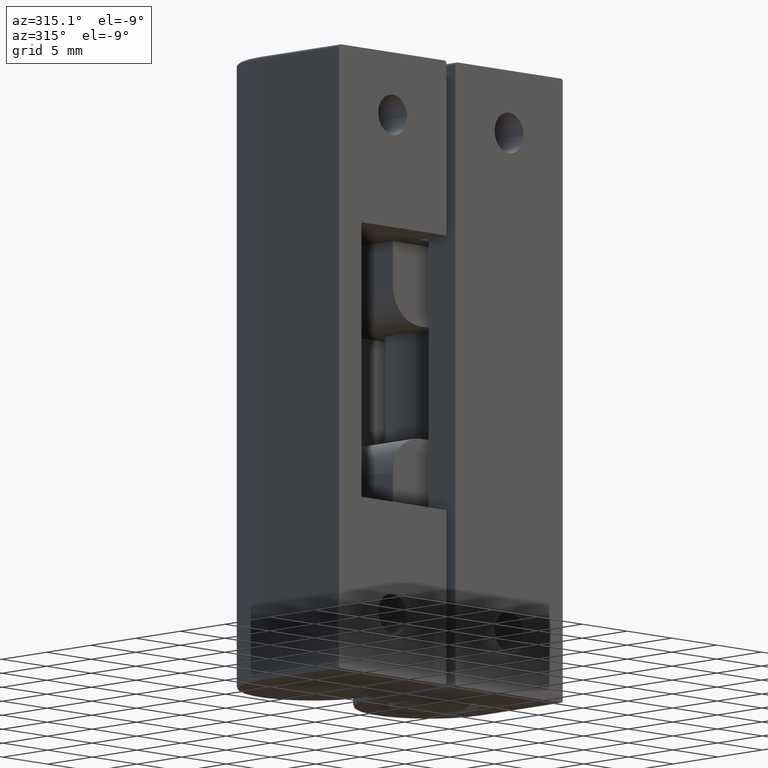
[diagram: clean part render]
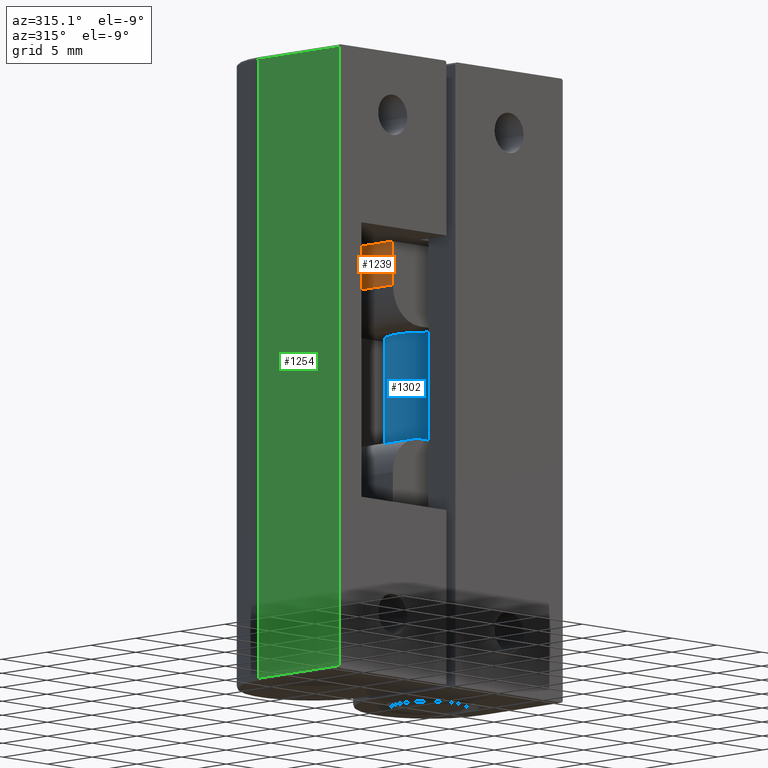
[diagram: same view with three faces highlighted in distinct colors, each labeled with its STEP entity id]
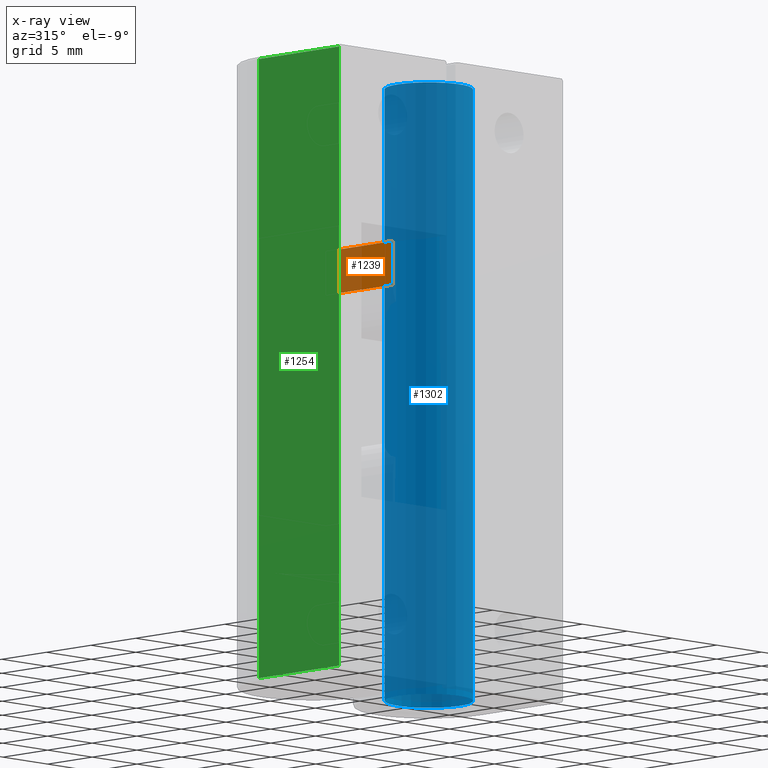
[diagram: x-ray of the same camera — body ghosted, the three highlighted faces saturated]
A machine part, auxiliary view with three faces highlighted in distinct colors.
The next image is the same camera in x-ray (body ghosted, the three faces saturated) — at least one of them is partly hidden behind the body in this view.
Their STEP definitions:

[orange] entity #1239 — the highlighted planar face has unit normal (-1, -0, 0).
#84=PLANE('',#1327);
#119=FACE_OUTER_BOUND('',#197,.T.);
#197=EDGE_LOOP('',(#894,#895,#896,#897));
#292=LINE('',#1894,#391);
#297=LINE('',#1905,#396);
#310=LINE('',#1939,#409);
#311=LINE('',#1940,#410);
#391=VECTOR('',#1483,7.5);
#396=VECTOR('',#1492,3.5);
#409=VECTOR('',#1525,7.5);
#410=VECTOR('',#1526,3.5);
#564=VERTEX_POINT('',#1891);
#565=VERTEX_POINT('',#1893);
#569=VERTEX_POINT('',#1903);
#580=VERTEX_POINT('',#1938);
#683=EDGE_CURVE('',#564,#565,#292,.T.);
#689=EDGE_CURVE('',#569,#564,#297,.T.);
#706=EDGE_CURVE('',#580,#569,#310,.T.);
#707=EDGE_CURVE('',#565,#580,#311,.T.);
#894=ORIENTED_EDGE('',*,*,#683,.F.);
#895=ORIENTED_EDGE('',*,*,#689,.F.);
#896=ORIENTED_EDGE('',*,*,#706,.F.);
#897=ORIENTED_EDGE('',*,*,#707,.F.);
#1239=ADVANCED_FACE('',(#119),#84,.T.);
#1327=AXIS2_PLACEMENT_3D('',#1937,#1523,#1524);
#1483=DIRECTION('',(-2.96059473233375E-16,1.,0.));
#1492=DIRECTION('',(0.,0.,-1.));
#1523=DIRECTION('center_axis',(-1.,-2.96059473233375E-16,0.));
#1524=DIRECTION('ref_axis',(0.,0.,-1.));
#1525=DIRECTION('',(2.96059473233375E-16,-1.,0.));
#1526=DIRECTION('',(0.,0.,1.));
#1891=CARTESIAN_POINT('',(5.,5.,-17.5));
#1893=CARTESIAN_POINT('',(5.,12.5,-17.5));
#1894=CARTESIAN_POINT('',(5.,12.5,-17.5));
#1903=CARTESIAN_POINT('',(5.,5.,-14.));
#1905=CARTESIAN_POINT('',(5.,5.,-14.));
#1937=CARTESIAN_POINT('Origin',(5.,12.5,-14.));
#1938=CARTESIAN_POINT('',(5.,12.5,-14.));
#1939=CARTESIAN_POINT('',(5.,6.25,-14.));
#1940=CARTESIAN_POINT('',(5.,12.5,-19.5));

[blue] entity #1302 — the highlighted cylindrical surface (bore or boss wall) has radius 3.5 mm, axis along (-0, 0, -1).
#76=FACE_BOUND('',#282,.T.);
#182=FACE_OUTER_BOUND('',#281,.T.);
#281=EDGE_LOOP('',(#1194));
#282=EDGE_LOOP('',(#1195));
#553=CIRCLE('',#1452,3.5);
#555=CIRCLE('',#1455,3.5);
#671=VERTEX_POINT('',#2305);
#673=VERTEX_POINT('',#2310);
#846=EDGE_CURVE('',#671,#671,#553,.T.);
#848=EDGE_CURVE('',#673,#673,#555,.T.);
#1194=ORIENTED_EDGE('',*,*,#848,.F.);
#1195=ORIENTED_EDGE('',*,*,#846,.F.);
#1229=CYLINDRICAL_SURFACE('',#1454,3.5);
#1302=ADVANCED_FACE('',(#182,#76),#1229,.T.);
#1452=AXIS2_PLACEMENT_3D('',#2306,#1849,#1850);
#1454=AXIS2_PLACEMENT_3D('',#2309,#1853,#1854);
#1455=AXIS2_PLACEMENT_3D('',#2311,#1855,#1856);
#1849=DIRECTION('center_axis',(0.,0.,-1.));
#1850=DIRECTION('ref_axis',(-1.,0.,0.));
#1853=DIRECTION('center_axis',(0.,0.,-1.));
#1854=DIRECTION('ref_axis',(-1.,0.,0.));
#1855=DIRECTION('center_axis',(0.,0.,1.));
#1856=DIRECTION('ref_axis',(-1.,0.,0.));
#2305=CARTESIAN_POINT('',(1.49999999999983,-2.00000000000019,-49.5));
#2306=CARTESIAN_POINT('Origin',(-2.00000000000017,-2.00000000000019,-49.5));
#2309=CARTESIAN_POINT('Origin',(-2.00000000000017,-2.00000000000019,0.));
#2310=CARTESIAN_POINT('',(1.49999999999983,-2.00000000000019,-0.5));
#2311=CARTESIAN_POINT('Origin',(-2.00000000000017,-2.00000000000019,-0.5));

[green] entity #1254 — the highlighted planar face has unit normal (-1, -0, 0).
#88=PLANE('',#1361);
#134=FACE_OUTER_BOUND('',#212,.T.);
#212=EDGE_LOOP('',(#970,#971,#972,#973));
#331=LINE('',#2015,#430);
#335=LINE('',#2033,#434);
#338=LINE('',#2044,#437);
#339=LINE('',#2045,#438);
#430=VECTOR('',#1590,9.);
#434=VECTOR('',#1610,49.6);
#437=VECTOR('',#1621,49.6);
#438=VECTOR('',#1622,9.);
#604=VERTEX_POINT('',#2012);
#605=VERTEX_POINT('',#2014);
#611=VERTEX_POINT('',#2032);
#615=VERTEX_POINT('',#2043);
#740=EDGE_CURVE('',#604,#605,#331,.T.);
#749=EDGE_CURVE('',#611,#605,#335,.T.);
#755=EDGE_CURVE('',#615,#604,#338,.T.);
#756=EDGE_CURVE('',#611,#615,#339,.T.);
#970=ORIENTED_EDGE('',*,*,#740,.F.);
#971=ORIENTED_EDGE('',*,*,#755,.F.);
#972=ORIENTED_EDGE('',*,*,#756,.F.);
#973=ORIENTED_EDGE('',*,*,#749,.T.);
#1254=ADVANCED_FACE('',(#134),#88,.T.);
#1361=AXIS2_PLACEMENT_3D('',#2042,#1619,#1620);
#1590=DIRECTION('',(-6.16790569236198E-16,1.,0.));
#1610=DIRECTION('',(0.,0.,-1.));
#1619=DIRECTION('center_axis',(-1.,-6.16790569236198E-16,0.));
#1620=DIRECTION('ref_axis',(-6.21724893790088E-16,1.,0.));
#1621=DIRECTION('',(0.,0.,-1.));
#1622=DIRECTION('',(6.16790569236198E-16,-1.,0.));
#2012=CARTESIAN_POINT('',(-6.,-7.34788079488411E-16,-49.8));
#2014=CARTESIAN_POINT('',(-6.,9.,-49.8));
#2015=CARTESIAN_POINT('',(-6.,4.5,-49.8));
#2032=CARTESIAN_POINT('',(-6.,9.,-0.2));
#2033=CARTESIAN_POINT('',(-6.,9.,0.));
#2042=CARTESIAN_POINT('Origin',(-6.,-1.11022302462516E-15,0.));
#2043=CARTESIAN_POINT('',(-6.,-7.34788079488411E-16,-0.2));
#2044=CARTESIAN_POINT('',(-6.,-7.34788079488411E-16,0.));
#2045=CARTESIAN_POINT('',(-6.,4.5,-0.2));